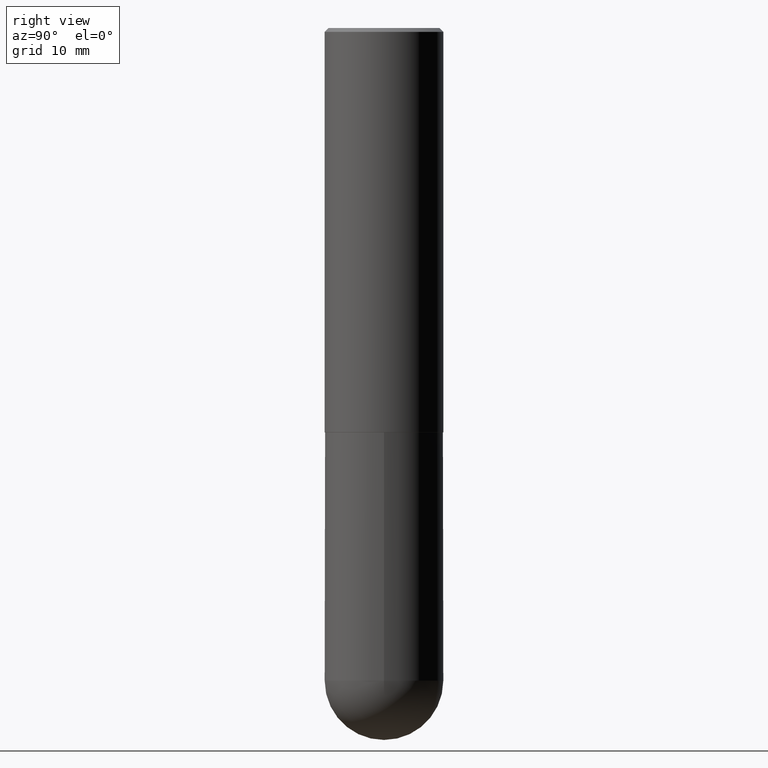
[diagram: clean part render]
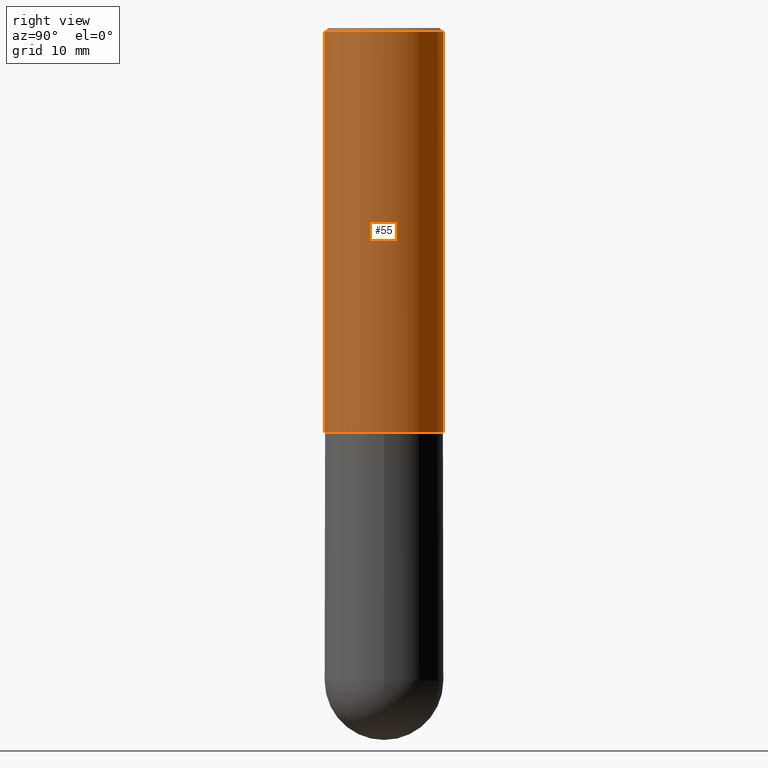
[diagram: same view with one face highlighted and labeled with its STEP entity id]
A machine part, right view. The second image highlights one B-rep face of the part: STEP entity #55.
In plain terms, the highlighted cylindrical surface (partial cylindrical patch) has radius 7.9375 mm, axis along (-0, 0, 1).
Its self-contained STEP definition (entity closure, byte-faithful):
#3 = ORIENTED_EDGE ( 'NONE', *, *, #68, .T. ) ;
#6 = DIRECTION ( 'NONE',  ( -6.982962677686265922E-15, -1.000000000000000000, 3.496765431890253764E-15 ) ) ;
#20 = VERTEX_POINT ( 'NONE', #322 ) ;
#28 = AXIS2_PLACEMENT_3D ( 'NONE', #295, #69, #6 ) ;
#45 = EDGE_CURVE ( 'NONE', #20, #86, #104, .T. ) ;
#53 = VERTEX_POINT ( 'NONE', #380 ) ;
#54 = ORIENTED_EDGE ( 'NONE', *, *, #303, .F. ) ;
#55 = ADVANCED_FACE ( 'NONE', ( #353 ), #61, .T. ) ;
#56 = CARTESIAN_POINT ( 'NONE',  ( 4.891751266084669456E-31, -6.981797479257029532E-17, -0.02000000000000006981 ) ) ;
#57 = VECTOR ( 'NONE', #62, 39.37007874015748143 ) ;
#61 = CYLINDRICAL_SURFACE ( 'NONE', #406, 0.3125000000000001665 ) ;
#62 = DIRECTION ( 'NONE',  ( -2.445875633042326005E-29, 3.490898739628503130E-15, 1.000000000000000000 ) ) ;
#68 = EDGE_CURVE ( 'NONE', #172, #86, #352, .T. ) ;
#69 = DIRECTION ( 'NONE',  ( -2.445875633042326285E-29, 3.490898739628503130E-15, 1.000000000000000000 ) ) ;
#83 = CIRCLE ( 'NONE', #28, 0.3125000000000002776 ) ;
#86 = VERTEX_POINT ( 'NONE', #192 ) ;
#88 = DIRECTION ( 'NONE',  ( -2.445875633042326285E-29, 3.490898739628503130E-15, 1.000000000000000000 ) ) ;
#95 = CARTESIAN_POINT ( 'NONE',  ( 0.000000000000000000, 0.000000000000000000, 0.000000000000000000 ) ) ;
#104 = CIRCLE ( 'NONE', #238, 0.3125000000000000000 ) ;
#105 = CARTESIAN_POINT ( 'NONE',  ( -2.182175836776959136E-15, -0.3125000000000001665, 1.090905856133907647E-15 ) ) ;
#112 = ORIENTED_EDGE ( 'NONE', *, *, #264, .T. ) ;
#160 = CARTESIAN_POINT ( 'NONE',  ( 2.220446049250340297E-15, 0.3124999999999928391, -2.129000000000000892 ) ) ;
#172 = VERTEX_POINT ( 'NONE', #160 ) ;
#186 = CARTESIAN_POINT ( 'NONE',  ( 2.220446049250313475E-15, 0.3125000000000001665, -1.090905856133907647E-15 ) ) ;
#192 = CARTESIAN_POINT ( 'NONE',  ( 2.182175836776958741E-15, 0.3124999999999999445, -0.02000000000000116268 ) ) ;
#196 = DIRECTION ( 'NONE',  ( -6.982962677686265133E-15, -1.000000000000000000, 3.490898739628502736E-15 ) ) ;
#220 = DIRECTION ( 'NONE',  ( -6.982962677686265133E-15, -1.000000000000000000, 3.496765431890256920E-15 ) ) ;
#235 = DIRECTION ( 'NONE',  ( -2.445875633042326005E-29, 3.490898739628503130E-15, 1.000000000000000000 ) ) ;
#238 = AXIS2_PLACEMENT_3D ( 'NONE', #56, #88, #220 ) ;
#264 = EDGE_CURVE ( 'NONE', #53, #172, #83, .T. ) ;
#283 = ORIENTED_EDGE ( 'NONE', *, *, #45, .F. ) ;
#291 = DIRECTION ( 'NONE',  ( -2.445875633042326285E-29, 3.490898739628503130E-15, 1.000000000000000000 ) ) ;
#295 = CARTESIAN_POINT ( 'NONE',  ( 5.207269222747112096E-29, -7.432123416669082885E-15, -2.129000000000000004 ) ) ;
#303 = EDGE_CURVE ( 'NONE', #53, #20, #387, .T. ) ;
#308 = EDGE_LOOP ( 'NONE', ( #112, #3, #283, #54 ) ) ;
#322 = CARTESIAN_POINT ( 'NONE',  ( -2.143905624303602824E-15, -0.3125000000000000555, -0.01999999999999897693 ) ) ;
#352 = LINE ( 'NONE', #186, #57 ) ;
#353 = FACE_OUTER_BOUND ( 'NONE', #308, .T. ) ;
#378 = VECTOR ( 'NONE', #235, 39.37007874015748143 ) ;
#380 = CARTESIAN_POINT ( 'NONE',  ( -2.182175836776907860E-15, -0.3125000000000077161, -2.128999999999998671 ) ) ;
#387 = LINE ( 'NONE', #105, #378 ) ;
#406 = AXIS2_PLACEMENT_3D ( 'NONE', #95, #291, #196 ) ;